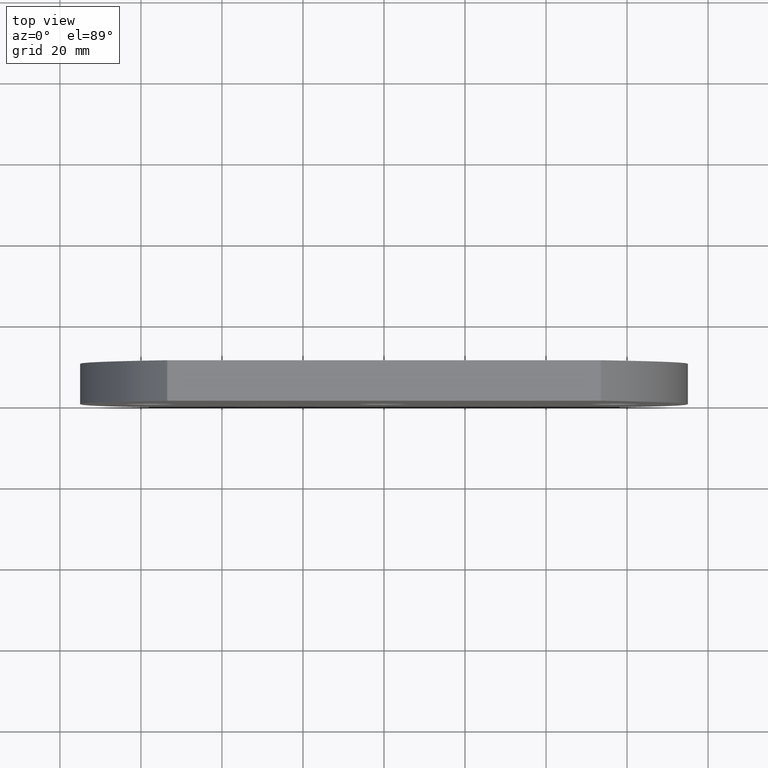
[diagram: clean part render]
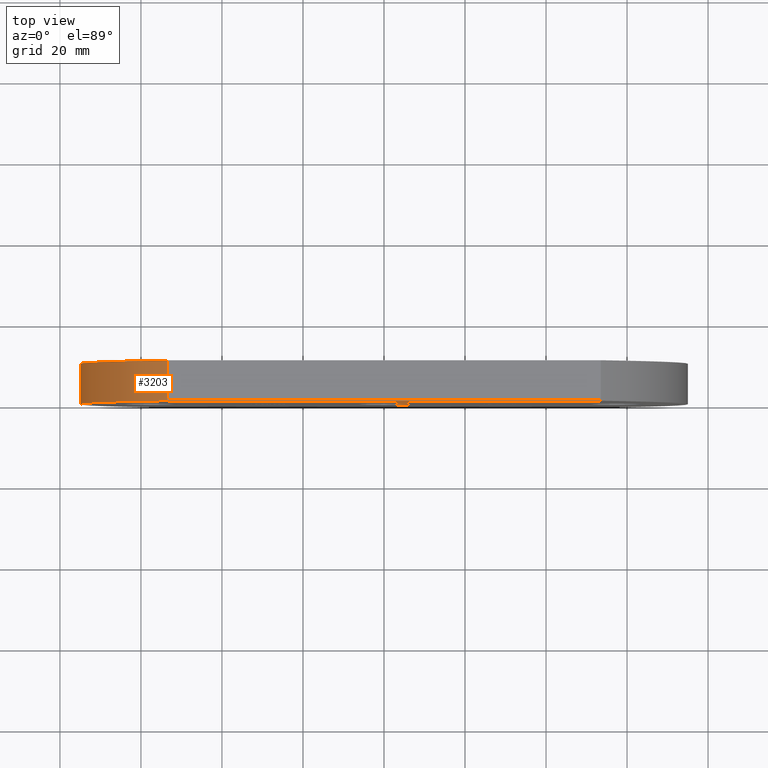
[diagram: same view with one face highlighted and labeled with its STEP entity id]
A machine part, top view. The second image highlights one B-rep face of the part: STEP entity #3203.
In plain terms, the highlighted cylindrical surface (partial cylindrical patch) has radius 68.8895 mm, axis along (-0, -1, -0).
Its self-contained STEP definition (entity closure, byte-faithful):
#124 = DIRECTION ( 'NONE',  ( 0.0000000000000000000, 0.0000000000000000000, 1.000000000000000000 ) ) ;
#302 = VERTEX_POINT ( 'NONE', #10068 ) ;
#356 = VECTOR ( 'NONE', #6112, 1000.000000000000000 ) ;
#462 = DIRECTION ( 'NONE',  ( 0.0000000000000000000, 0.0000000000000000000, -1.000000000000000000 ) ) ;
#877 = CIRCLE ( 'NONE', #9375, 68.88953488372095500 ) ;
#1066 = CARTESIAN_POINT ( 'NONE',  ( -53.49999999999998600, 10.00000000000000000, -50.00000000000003600 ) ) ;
#1280 = ORIENTED_EDGE ( 'NONE', *, *, #3716, .T. ) ;
#1292 = VERTEX_POINT ( 'NONE', #1066 ) ;
#1387 = ORIENTED_EDGE ( 'NONE', *, *, #8351, .F. ) ;
#1852 = EDGE_CURVE ( 'NONE', #8812, #7369, #5418, .T. ) ;
#2236 = CARTESIAN_POINT ( 'NONE',  ( -6.110465116279051800, 10.00000000000000000, 0.0000000000000000000 ) ) ;
#3054 = LINE ( 'NONE', #8359, #9512 ) ;
#3203 = ADVANCED_FACE ( 'NONE', ( #10613 ), #9824, .T. ) ;
#3716 = EDGE_CURVE ( 'NONE', #1292, #8812, #3054, .T. ) ;
#3835 = DIRECTION ( 'NONE',  ( -0.0000000000000000000, -1.000000000000000000, -0.0000000000000000000 ) ) ;
#3899 = DIRECTION ( 'NONE',  ( 0.0000000000000000000, 1.000000000000000000, 0.0000000000000000000 ) ) ;
#5187 = AXIS2_PLACEMENT_3D ( 'NONE', #2236, #3835, #462 ) ;
#5418 = CIRCLE ( 'NONE', #9836, 68.88953488372095500 ) ;
#5441 = CARTESIAN_POINT ( 'NONE',  ( -6.110465116279051800, 10.00000000000000000, 0.0000000000000000000 ) ) ;
#5727 = DIRECTION ( 'NONE',  ( -0.0000000000000000000, -1.000000000000000000, -0.0000000000000000000 ) ) ;
#5872 = ORIENTED_EDGE ( 'NONE', *, *, #8042, .F. ) ;
#6024 = CARTESIAN_POINT ( 'NONE',  ( -6.110465116279051800, 0.0000000000000000000, 0.0000000000000000000 ) ) ;
#6112 = DIRECTION ( 'NONE',  ( -0.0000000000000000000, -1.000000000000000000, -0.0000000000000000000 ) ) ;
#6423 = ORIENTED_EDGE ( 'NONE', *, *, #1852, .T. ) ;
#7133 = DIRECTION ( 'NONE',  ( 0.0000000000000000000, 0.0000000000000000000, 1.000000000000000000 ) ) ;
#7369 = VERTEX_POINT ( 'NONE', #7703 ) ;
#7703 = CARTESIAN_POINT ( 'NONE',  ( -53.50000000000003600, 0.0000000000000000000, 49.99999999999998600 ) ) ;
#8042 = EDGE_CURVE ( 'NONE', #1292, #302, #877, .T. ) ;
#8351 = EDGE_CURVE ( 'NONE', #302, #7369, #9301, .T. ) ;
#8359 = CARTESIAN_POINT ( 'NONE',  ( -53.49999999999998600, 10.00000000000000000, -50.00000000000003600 ) ) ;
#8812 = VERTEX_POINT ( 'NONE', #10502 ) ;
#9301 = LINE ( 'NONE', #10278, #356 ) ;
#9375 = AXIS2_PLACEMENT_3D ( 'NONE', #5441, #3899, #7133 ) ;
#9512 = VECTOR ( 'NONE', #5727, 1000.000000000000000 ) ;
#9824 = CYLINDRICAL_SURFACE ( 'NONE', #5187, 68.88953488372095500 ) ;
#9836 = AXIS2_PLACEMENT_3D ( 'NONE', #6024, #10184, #124 ) ;
#10068 = CARTESIAN_POINT ( 'NONE',  ( -53.50000000000003600, 10.00000000000000000, 49.99999999999998600 ) ) ;
#10184 = DIRECTION ( 'NONE',  ( 0.0000000000000000000, 1.000000000000000000, 0.0000000000000000000 ) ) ;
#10245 = EDGE_LOOP ( 'NONE', ( #6423, #1387, #5872, #1280 ) ) ;
#10278 = CARTESIAN_POINT ( 'NONE',  ( -53.50000000000003600, 10.00000000000000000, 49.99999999999998600 ) ) ;
#10502 = CARTESIAN_POINT ( 'NONE',  ( -53.49999999999998600, 0.0000000000000000000, -50.00000000000003600 ) ) ;
#10613 = FACE_OUTER_BOUND ( 'NONE', #10245, .T. ) ;